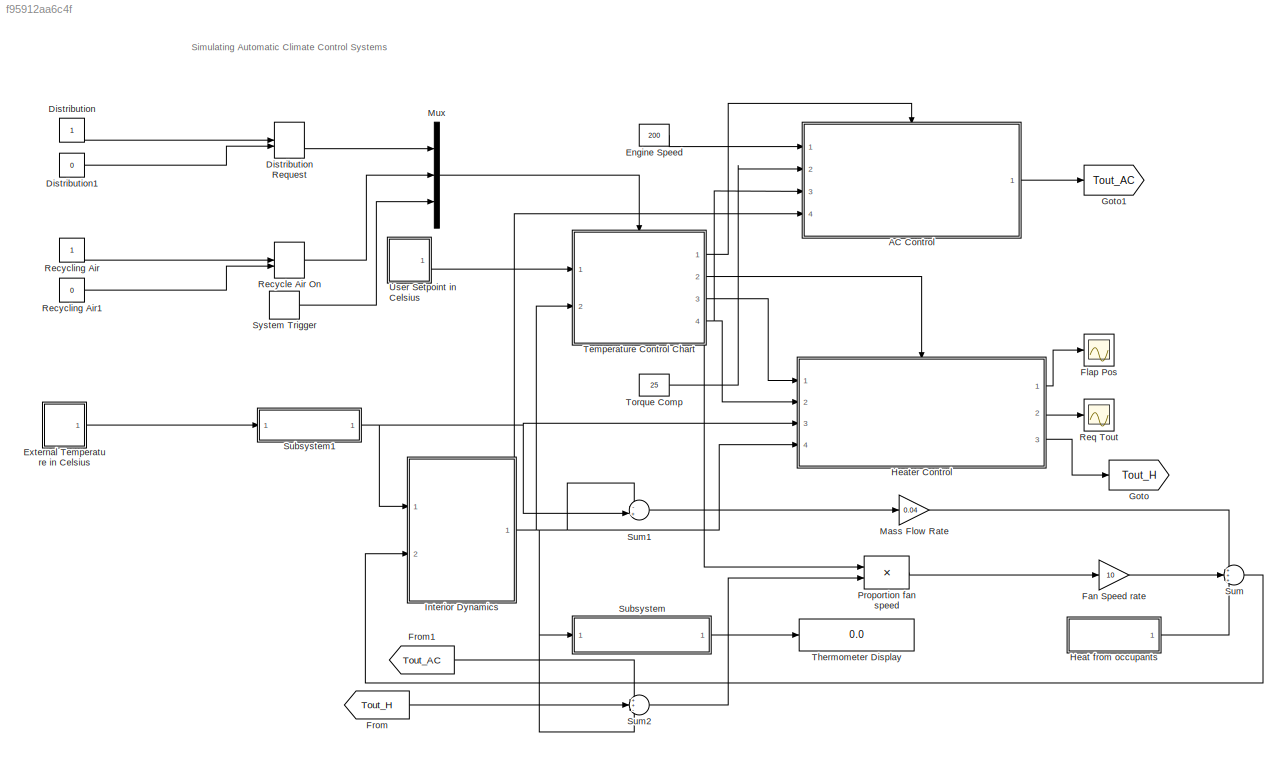
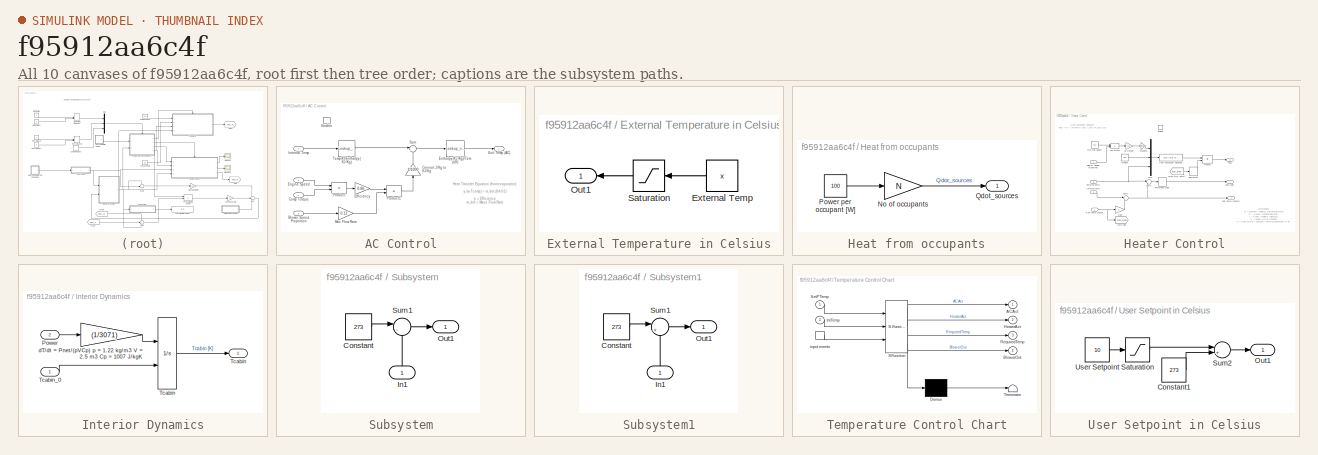
[diagram: thumbnail index - all 10 canvases of the model, root first then tree order]
MODEL slx_f95912aa6c4f
KIND model
CONFIG AbsTol = auto
CONFIG EnableMultiTasking = on
CONFIG FixedStep = auto
CONFIG MaxStep = auto
CONFIG MinStep = auto
CONFIG RelTol = 1e-3
CONFIG SampleTimeConstraint = Unconstrained
CONFIG SolverName = ode45
CONFIG StartTime = 0.0
CONFIG StopTime = 1000.0
BLOCK [SubSystem] AC Control
  Ports = [4, 1, 1]
  RequestExecContextInheritance = off
  TreatAsAtomicUnit = on
BLOCK [Inport] AC Control/Blower Speed Proportion
  Port = 3
BLOCK [Inport] AC Control/Comp Torque
  Port = 2
BLOCK [Gain] AC Control/Convert J//Kg to KJ//Kg
  Gain = 1/1000
  NameLocation = left
BLOCK [Gain] AC Control/Efficiency
  Gain = 0.86
  OutDataTypeStr = Inherit: Same as input
  ParamDataTypeStr = Inherit: Same as input
  SaturateOnIntegerOverflow = on
BLOCK [EnablePort] AC Control/Enable
  Ports = []
  PropagateVarSize = During execution
  StatesWhenEnabling = reset
  ZeroCross = off
BLOCK [Inport] AC Control/Engine Speed
BLOCK [Lookup_n-D] AC Control/Enthalpy(KJ//Kg)//Temp(K)
  BreakpointsForDimension1 = [ 219.97 230.02 240.02 250.05 260.09 270.11 280.13 285.14 290.16 295.17 300.19 305.22 310.24 315.27 320.29]
  InputPortMap = u0
  NumberOfTableDimensions = 1
  Ports = [1, 1]
  SaturateOnIntegerOverflow = on
  Table = [220 230 240 250 260 270 280 285 290 295 300 305 310 315 320]
BLOCK [Outport] AC Control/Exit Temp (AC)
  InitialOutput = 0
  OutputWhenDisabled = reset
  VectorParamsAs1DForOutWhenUnconnected = off
BLOCK [Inport] AC Control/Internal Temp
  Port = 4
BLOCK [Gain] AC Control/Max Flow Rate
  Gain = 0.12
  OutDataTypeStr = Inherit: Same as input
  ParamDataTypeStr = Inherit: Same as input
  SaturateOnIntegerOverflow = on
BLOCK [Product] AC Control/Product
  InputSameDT = on
  OutDataTypeStr = Inherit: Same as first input
  Ports = [2, 1]
  SaturateOnIntegerOverflow = on
BLOCK [Product] AC Control/Product1
  InputSameDT = on
  Inputs = */
  OutDataTypeStr = Inherit: Same as first input
  Ports = [2, 1]
  SaturateOnIntegerOverflow = on
BLOCK [Sum] AC Control/Sum
  InputSameDT = on
  Inputs = |+-
  OutDataTypeStr = Inherit: Same as first input
  Ports = [2, 1]
  SaturateOnIntegerOverflow = on
BLOCK [Lookup_n-D] AC Control/Temp(K)//Enthalpy(KJ//Kg)
  BreakpointsForDimension1 = [220 230 240 250 260 270 280 285 290 295 300 305 310 315 320]
  InputPortMap = u0
  NumberOfTableDimensions = 1
  Ports = [1, 1]
  SaturateOnIntegerOverflow = on
  Table = [219.97 230.02 240.02 250.05 260.09 270.11 280.13 285.14 290.16 295.17 300.19 305.22 310.24 315.27 320.29]
BLOCK [Constant] Distribution 
  NameLocation = top
BLOCK [ManualSwitch] Distribution Request
  CurrentSetting = 0
  NameLocation = top
BLOCK [Constant] Distribution1 
  Value = 0
BLOCK [Constant] Engine Speed
  Value = 200
BLOCK [SubSystem] External Temperature in Celsius
  Ports = [0, 1]
  RequestExecContextInheritance = off
BLOCK [Constant] External Temperature in Celsius/External Temp
  Value = x
BLOCK [Outport] External Temperature in Celsius/Out1
  VectorParamsAs1DForOutWhenUnconnected = off
BLOCK [Saturate] External Temperature in Celsius/Saturation
  LowerLimit = -99
  UpperLimit = 100
BLOCK [Gain] Fan Speed rate
  Gain = 10
  OutDataTypeStr = Inherit: Same as input
  ParamDataTypeStr = Inherit: Same as input
  SaturateOnIntegerOverflow = on
BLOCK [Scope] Flap Pos
  Floating = off
  NumInputPorts = 1
  Ports = [1]
  ScopeSpecificationString = Simulink.scopes.TimeScopeBlockCfg('CurrentConfiguration', extmgr.ConfigurationSet(extmgr.Configuration('Core','General UI',true),extmgr.Configuration('Core','Source UI',true),extmgr.Configuration('Sources','WiredSimulink',true,'DataLoggingSaveFormat','StructureWithTime','DataLoggingLimitDataPoints',true,'DataLoggingDecimation','1'),extmgr.Configuration('Visuals','Time Domain',true,'SerializedDispl...<+1713ch>
BLOCK [From] From
  CloseFcn = tagdialog Close
  GotoTag = Tout_H
BLOCK [From] From1
  CloseFcn = tagdialog Close
  GotoTag = Tout_AC
BLOCK [Goto] Goto
  GotoTag = Tout_H
BLOCK [Goto] Goto1
  GotoTag = Tout_AC
BLOCK [SubSystem] Heat from occupants
  AttributesFormatString = No. of occupants: %<N>
  Ports = [0, 1]
  RequestExecContextInheritance = off
BLOCK [Gain] Heat from occupants/No of occupants
  Gain = N
  OutDataTypeStr = Inherit: Same as input
  ParamDataTypeStr = Inherit: Same as input
  SaturateOnIntegerOverflow = on
BLOCK [Constant] Heat from occupants/Power per occupant [W]
  Value = 100
BLOCK [Outport] Heat from occupants/Qdot_sources
  VectorParamsAs1DForOutWhenUnconnected = off
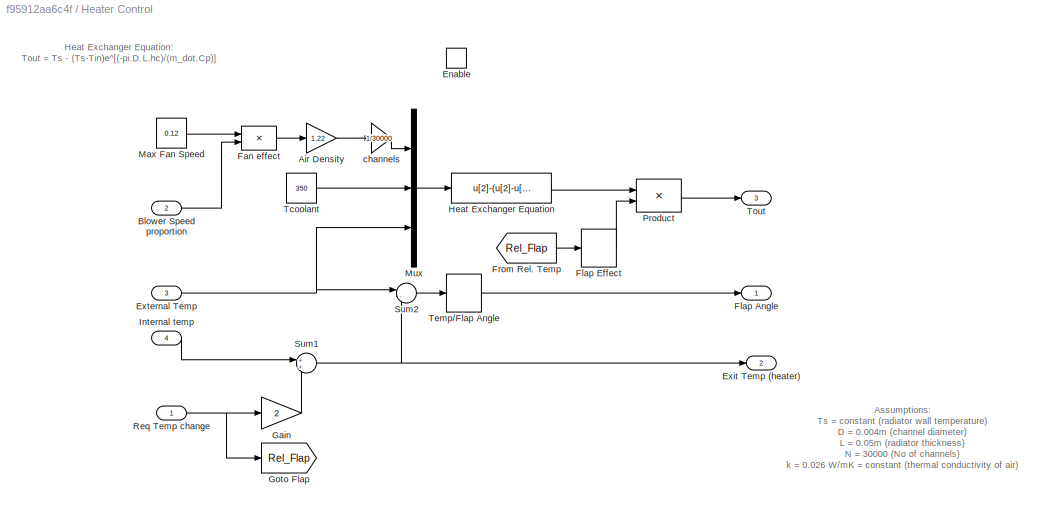
BLOCK [SubSystem] Heater Control
  Ports = [4, 3, 1]
  RequestExecContextInheritance = off
  TreatAsAtomicUnit = on
BLOCK [Gain] Heater Control/Air Density
  Gain = 1.22
  OutDataTypeStr = Inherit: Same as input
  ParamDataTypeStr = Inherit: Same as input
  SaturateOnIntegerOverflow = on
BLOCK [Inport] Heater Control/Blower Speed proportion
  Port = 2
BLOCK [EnablePort] Heater Control/Enable
  Ports = []
  PropagateVarSize = During execution
  StatesWhenEnabling = reset
  ZeroCross = off
BLOCK [Outport] Heater Control/Exit Temp (heater)
  InitialOutput = 0
  OutputWhenDisabled = reset
  Port = 2
  VectorParamsAs1DForOutWhenUnconnected = off
BLOCK [Inport] Heater Control/External Temp
  Port = 3
BLOCK [Product] Heater Control/Fan effect
  InputSameDT = on
  OutDataTypeStr = Inherit: Same as first input
  Ports = [2, 1]
  SaturateOnIntegerOverflow = on
BLOCK [Outport] Heater Control/Flap Angle
  InitialOutput = 0
  OutputWhenDisabled = reset
  VectorParamsAs1DForOutWhenUnconnected = off
BLOCK [Lookup_n-D] Heater Control/Flap Effect
  BreakpointsForDimension1 = [0 3 5 10 50  90 100 200 ]
  InputPortMap = u0
  NumberOfTableDimensions = 1
  Ports = [1, 1]
  SaturateOnIntegerOverflow = on
  Table = [0 300 100  10 10  10 3 1]
BLOCK [From] Heater Control/From Rel. Temp
  CloseFcn = tagdialog Close
  GotoTag = Rel_Flap
BLOCK [Gain] Heater Control/Gain
  Gain = 2
  OutDataTypeStr = Inherit: Same as input
  ParamDataTypeStr = Inherit: Same as input
  SaturateOnIntegerOverflow = on
BLOCK [Goto] Heater Control/Goto Flap
  GotoTag = Rel_Flap
BLOCK [Fcn] Heater Control/Heat Exchanger Equation
  Expr = u[2]-(u[2]-u[3])*exp(-(pi*0.004*0.05*23.8)/(u[1]*1007))
BLOCK [Inport] Heater Control/Internal temp
  Port = 4
BLOCK [Constant] Heater Control/Max Fan Speed
  Value = 0.12
BLOCK [Mux] Heater Control/Mux
  DisplayOption = bar
  Inputs = 3
  Ports = [3, 1]
BLOCK [Product] Heater Control/Product
  InputSameDT = on
  OutDataTypeStr = Inherit: Same as first input
  Ports = [2, 1]
  SaturateOnIntegerOverflow = on
BLOCK [Inport] Heater Control/Req Temp change
BLOCK [Sum] Heater Control/Sum1
  InputSameDT = on
  OutDataTypeStr = Inherit: Same as first input
  Ports = [2, 1]
  SaturateOnIntegerOverflow = on
BLOCK [Sum] Heater Control/Sum2
  InputSameDT = on
  Inputs = |-+
  NameLocation = top
  OutDataTypeStr = Inherit: Same as first input
  Ports = [2, 1]
  SaturateOnIntegerOverflow = on
BLOCK [Constant] Heater Control/Tcoolant 
  Value = 350
BLOCK [Lookup_n-D] Heater Control/Temp//Flap Angle
  BreakpointsForDimension1 = [0 10 20 30 40 50 60 75 100 200]
  InputPortMap = u0
  NumberOfTableDimensions = 1
  Ports = [1, 1]
  SaturateOnIntegerOverflow = on
  Table = [0 20 30 45 60 75 90 90 90 90]
BLOCK [Outport] Heater Control/Tout
  InitialOutput = 0
  OutputWhenDisabled = reset
  Port = 3
  VectorParamsAs1DForOutWhenUnconnected = off
BLOCK [Gain] Heater Control/channels
  Gain = 1/30000
  OutDataTypeStr = Inherit: Same as input
  ParamDataTypeStr = Inherit: Same as input
  SaturateOnIntegerOverflow = on
BLOCK [SubSystem] Interior Dynamics
  Ports = [2, 1]
  RequestExecContextInheritance = off
BLOCK [Inport] Interior Dynamics/Power
  Port = 2
BLOCK [Integrator] Interior Dynamics/Tcabin
  InitialCondition = 291
  InitialConditionSource = external
  Ports = [2, 1]
  ZeroCross = off
BLOCK [Outport] Interior Dynamics/Tcabin 
  VectorParamsAs1DForOutWhenUnconnected = off
BLOCK [Inport] Interior Dynamics/Tcabin_0
BLOCK [Gain] Interior Dynamics/dT//dt = Pnet//(pVCp) p = 1.22 kg//m3 V = 2.5 m3 Cp = 1007 J//kgK
  Gain = (1/3071)
  NameLocation = top
  OutDataTypeStr = Inherit: Same as input
  ParamDataTypeStr = Inherit: Same as input
  SaturateOnIntegerOverflow = on
BLOCK [Gain] Mass Flow Rate
  Gain = 0.04
  OutDataTypeStr = Inherit: Same as input
  ParamDataTypeStr = Inherit: Same as input
  SaturateOnIntegerOverflow = on
BLOCK [Mux] Mux
  DisplayOption = bar
  Inputs = 3
  Ports = [3, 1]
BLOCK [Product] Proportion fan speed
  InputSameDT = on
  OutDataTypeStr = Inherit: Same as first input
  Ports = [2, 1]
  SaturateOnIntegerOverflow = on
BLOCK [ManualSwitch] Recycle Air On
  CurrentSetting = 0
  NameLocation = top
BLOCK [Constant] Recycling Air
  NameLocation = top
BLOCK [Constant] Recycling Air1
  Value = 0
BLOCK [Scope] Req Tout
  Floating = off
  NumInputPorts = 1
  Ports = [1]
  ScopeSpecificationString = Simulink.scopes.TimeScopeBlockCfg('CurrentConfiguration', extmgr.ConfigurationSet(extmgr.Configuration('Core','General UI',true),extmgr.Configuration('Core','Source UI',true),extmgr.Configuration('Sources','WiredSimulink',true,'DataLoggingVariableName','ScopeData1','DataLoggingSaveFormat','StructureWithTime','DataLoggingLimitDataPoints',true,'DataLoggingDecimation','1'),extmgr.Configuration('Visua...<+1752ch>
BLOCK [SubSystem] Subsystem
  NameLocation = top
  Ports = [1, 1]
  RequestExecContextInheritance = off
BLOCK [Constant] Subsystem/Constant
  Value = 273
BLOCK [Inport] Subsystem/In1
  NameLocation = right
BLOCK [Outport] Subsystem/Out1
  VectorParamsAs1DForOutWhenUnconnected = off
BLOCK [Sum] Subsystem/Sum1
  InputSameDT = on
  Inputs = |-+
  OutDataTypeStr = Inherit: Same as first input
  Ports = [2, 1]
  SaturateOnIntegerOverflow = on
BLOCK [SubSystem] Subsystem1
  NameLocation = top
  Ports = [1, 1]
  RequestExecContextInheritance = off
BLOCK [Constant] Subsystem1/Constant
  Value = 273
BLOCK [Inport] Subsystem1/In1
  NameLocation = right
BLOCK [Outport] Subsystem1/Out1
  VectorParamsAs1DForOutWhenUnconnected = off
BLOCK [Sum] Subsystem1/Sum1
  InputSameDT = on
  Inputs = |++
  OutDataTypeStr = Inherit: Same as first input
  Ports = [2, 1]
  SaturateOnIntegerOverflow = on
BLOCK [Sum] Sum
  InputSameDT = on
  Inputs = +++
  OutDataTypeStr = Inherit: Same as first input
  Ports = [3, 1]
  SaturateOnIntegerOverflow = on
BLOCK [Sum] Sum1
  InputSameDT = on
  Inputs = -+|
  OutDataTypeStr = Inherit: Same as first input
  Ports = [2, 1]
  SaturateOnIntegerOverflow = on
BLOCK [Sum] Sum2
  InputSameDT = on
  Inputs = ++-
  OutDataTypeStr = Inherit: Same as first input
  Ports = [3, 1]
  SaturateOnIntegerOverflow = on
BLOCK [DiscretePulseGenerator] System Trigger
  Period = 1/60
  Ports = [0, 1]
  PulseType = Time based
  PulseWidth = 50
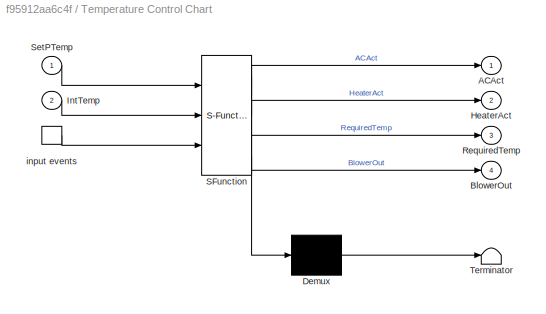
BLOCK [SubSystem] Temperature Control Chart
  ErrorFcn = Stateflow.Translate.translate
  PermitHierarchicalResolution = ExplicitOnly
  Ports = [2, 4, 0, 1]
  RequestExecContextInheritance = off
  SFBlockType = Chart
  TreatAsAtomicUnit = on
BLOCK [Outport] Temperature Control Chart/ ACAct
  VectorParamsAs1DForOutWhenUnconnected = off
BLOCK [Demux] Temperature Control Chart/ Demux 
  Outputs = 1
  Ports = [1, 1]
BLOCK [Outport] Temperature Control Chart/ HeaterAct
  Port = 2
  VectorParamsAs1DForOutWhenUnconnected = off
BLOCK [S-Function] Temperature Control Chart/ SFunction 
  EnableBusSupport = on
  FunctionName = sf_sfun
  PortCounts = [3 5]
  Ports = [3, 5]
  SFcnIsStateOwnerBlock = off
  SFunctionDeploymentMode = off
  Tag = Stateflow S-Function 1
BLOCK [Terminator] Temperature Control Chart/ Terminator 
BLOCK [TriggerPort] Temperature Control Chart/ input events 
  Ports = [0, 1]
  ShowOutputPort = on
  TriggerType = either
  VariantControl = (inherit)
  ZeroCross = off
BLOCK [Outport] Temperature Control Chart/BlowerOut
  Port = 4
  VectorParamsAs1DForOutWhenUnconnected = off
BLOCK [Inport] Temperature Control Chart/IntTemp
  Port = 2
BLOCK [Outport] Temperature Control Chart/RequiredTemp
  Port = 3
  VectorParamsAs1DForOutWhenUnconnected = off
BLOCK [Inport] Temperature Control Chart/SetPTemp
BLOCK [Display] Thermometer Display
  Decimation = 1
  Ports = [1]
BLOCK [Constant] Torque Comp
  Value = 25
BLOCK [SubSystem] User Setpoint in Celsius
  Ports = [0, 1]
  RequestExecContextInheritance = off
BLOCK [Constant] User Setpoint in Celsius/Constant1
  Value = 273
BLOCK [Outport] User Setpoint in Celsius/Out1
  VectorParamsAs1DForOutWhenUnconnected = off
BLOCK [Saturate] User Setpoint in Celsius/Saturation
  LowerLimit = -99
  UpperLimit = 100
BLOCK [Sum] User Setpoint in Celsius/Sum2
  InputSameDT = on
  Inputs = |++
  OutDataTypeStr = Inherit: Same as first input
  Ports = [2, 1]
  SaturateOnIntegerOverflow = on
BLOCK [Constant] User Setpoint in Celsius/User Setpoint
  Value = 10
ANNOTATION (root): Simulating Automatic Climate Control Systems
ANNOTATION AC Control: Heat Transfer Equation (from evaporator): y.(w.Tcomp) = m_dot.(h4-h1) y = Efficiency m_dot = Mass Flow Rate w = Speed of the Engine Tcomp = Compressor Torque h4, h1 = Enthalpy
ANNOTATION Heater Control: Assumptions: Ts = constant (radiator wall temperature) D = 0.004m (channel diameter) L = 0.05m (radiator thickness) N = 30000 (No of channels) k = 0.026 W/mK = constant (thermal conductivity of air) Cp = 1007 J/kgK = constant (specific heat of air) Laminar flow (hc = 3.66(k/D) = 23.8 W/m2K )
ANNOTATION Heater Control: Heat Exchanger Equation: Tout = Ts - (Ts-Tin)e^[(-pi.D.L.hc)/(m_dot.Cp)]
LINE AC Control/Blower Speed Proportion:1 -> AC Control/Max Flow Rate:1
LINE AC Control/Comp Torque:1 -> AC Control/Product:2
LINE AC Control/Convert J//Kg to KJ//Kg:1 -> AC Control/Sum:2
LINE AC Control/Efficiency:1 -> AC Control/Product1:1
LINE AC Control/Engine Speed:1 -> AC Control/Product:1
LINE AC Control/Enthalpy(KJ//Kg)//Temp(K):1 -> AC Control/Exit Temp (AC):1
LINE AC Control/Internal Temp:1 -> AC Control/Temp(K)//Enthalpy(KJ//Kg):1
LINE AC Control/Max Flow Rate:1 -> AC Control/Product1:2
LINE AC Control/Product1:1 -> AC Control/Convert J//Kg to KJ//Kg:1
LINE AC Control/Product:1 -> AC Control/Efficiency:1
LINE AC Control/Sum:1 -> AC Control/Enthalpy(KJ//Kg)//Temp(K):1
LINE AC Control/Temp(K)//Enthalpy(KJ//Kg):1 -> AC Control/Sum:1
LINE AC Control:1 -> Goto1:1
LINE Distribution :1 -> Distribution Request:1
LINE Distribution Request:1 -> Mux:1
LINE Distribution1 :1 -> Distribution Request:2
LINE Engine Speed:1 -> AC Control:1
LINE External Temperature in Celsius/External Temp:1 -> External Temperature in Celsius/Saturation:1
LINE External Temperature in Celsius/Saturation:1 -> External Temperature in Celsius/Out1:1
LINE External Temperature in Celsius:1 -> Subsystem1:1
LINE Fan Speed rate:1 -> Sum:2
LINE From1:1 -> Sum2:1
LINE From:1 -> Sum2:2
LINE Heat from occupants/No of occupants:1 -> Heat from occupants/Qdot_sources:1
LINE Heat from occupants/Power per occupant [W]:1 -> Heat from occupants/No of occupants:1
LINE Heat from occupants:1 -> Sum:3
LINE Heater Control/Air Density:1 -> Heater Control/channels:1
LINE Heater Control/Blower Speed proportion:1 -> Heater Control/Fan effect:2
NET Heater Control/External Temp:1 -> Heater Control/Mux:3, Heater Control/Sum2:1
LINE Heater Control/Fan effect:1 -> Heater Control/Air Density:1
LINE Heater Control/Flap Effect:1 -> Heater Control/Product:2
LINE Heater Control/From Rel. Temp:1 -> Heater Control/Flap Effect:1
LINE Heater Control/Gain:1 -> Heater Control/Sum1:2
LINE Heater Control/Heat Exchanger Equation:1 -> Heater Control/Product:1
LINE Heater Control/Internal temp:1 -> Heater Control/Sum1:1
LINE Heater Control/Max Fan Speed:1 -> Heater Control/Fan effect:1
LINE Heater Control/Mux:1 -> Heater Control/Heat Exchanger Equation:1
LINE Heater Control/Product:1 -> Heater Control/Tout:1
NET Heater Control/Req Temp change:1 -> Heater Control/Gain:1, Heater Control/Goto Flap:1
NET Heater Control/Sum1:1 -> Heater Control/Exit Temp (heater):1, Heater Control/Sum2:2
LINE Heater Control/Sum2:1 -> Heater Control/Temp//Flap Angle:1
LINE Heater Control/Tcoolant :1 -> Heater Control/Mux:2
LINE Heater Control/Temp//Flap Angle:1 -> Heater Control/Flap Angle:1
LINE Heater Control/channels:1 -> Heater Control/Mux:1
LINE Heater Control:1 -> Flap Pos:1
LINE Heater Control:2 -> Req Tout:1
LINE Heater Control:3 -> Goto:1
LINE Interior Dynamics/Power:1 -> Interior Dynamics/dT//dt = Pnet//(pVCp) p = 1.22 kg//m3 V = 2.5 m3 Cp = 1007 J//kgK:1
LINE Interior Dynamics/Tcabin:1 -> Interior Dynamics/Tcabin :1
LINE Interior Dynamics/Tcabin_0:1 -> Interior Dynamics/Tcabin:2
LINE Interior Dynamics/dT//dt = Pnet//(pVCp) p = 1.22 kg//m3 V = 2.5 m3 Cp = 1007 J//kgK:1 -> Interior Dynamics/Tcabin:1
NET Interior Dynamics:1 -> AC Control:4, Heater Control:4, Subsystem:1, Sum1:1, Sum2:3, Temperature Control Chart:2
LINE Mass Flow Rate:1 -> Sum:1
LINE Mux:1 -> Temperature Control Chart:trigger
LINE Proportion fan speed:1 -> Fan Speed rate:1
LINE Recycle Air On:1 -> Mux:2
LINE Recycling Air1:1 -> Recycle Air On:2
LINE Recycling Air:1 -> Recycle Air On:1
LINE Subsystem/Constant:1 -> Subsystem/Sum1:1
LINE Subsystem/In1:1 -> Subsystem/Sum1:2
LINE Subsystem/Sum1:1 -> Subsystem/Out1:1
LINE Subsystem1/Constant:1 -> Subsystem1/Sum1:1
LINE Subsystem1/In1:1 -> Subsystem1/Sum1:2
LINE Subsystem1/Sum1:1 -> Subsystem1/Out1:1
NET Subsystem1:1 -> Heater Control:3, Interior Dynamics:1, Sum1:2
LINE Subsystem:1 -> Thermometer Display:1
LINE Sum1:1 -> Mass Flow Rate:1
LINE Sum2:1 -> Proportion fan speed:2
LINE Sum:1 -> Interior Dynamics:2
LINE System Trigger:1 -> Mux:3
LINE Temperature Control Chart:1 -> AC Control:enable
LINE Temperature Control Chart:2 -> Heater Control:enable
LINE Temperature Control Chart:3 -> Heater Control:1
NET Temperature Control Chart:4 -> AC Control:3, Heater Control:2, Proportion fan speed:1
LINE Torque Comp:1 -> AC Control:2
LINE User Setpoint in Celsius/Constant1:1 -> User Setpoint in Celsius/Sum2:2
LINE User Setpoint in Celsius/Saturation:1 -> User Setpoint in Celsius/Sum2:1
LINE User Setpoint in Celsius/Sum2:1 -> User Setpoint in Celsius/Out1:1
LINE User Setpoint in Celsius/User Setpoint:1 -> User Setpoint in Celsius/Saturation:1
LINE User Setpoint in Celsius:1 -> Temperature Control Chart:1
note: NET lines group one-source signal fan-out (src -> all destinations, sorted); 1:1 wires keep LINE
CHART Temperature Control Chart states=21 transitions=26
  STATE_LABEL 'Blower\nduring:setpoint_calc();'
  STATE_LABEL 'Blower_off\nentry:BlowerOut=0.0;'
  STATE_LABEL 'Blower_on'
  STATE_LABEL 'Blower_1\nentry:BlowerOut=0.2;'
  STATE_LABEL 'Blower_2\nentry:BlowerOut=0.4;'
  STATE_LABEL 'Blower_3\nentry:BlowerOut=0.6;'
  STATE_LABEL 'Blower_4\nentry:BlowerOut=0.8;'
  STATE_LABEL 'Blower_5\nentry:BlowerOut=1.0;'
  STATE_LABEL 'E[~in(Blower_1) && in_temp_range(1.5,5)]'
  STATE_LABEL 'E[~in(Blower_2) && in_temp_range(7,10)]'
  STATE_LABEL 'E[~in(Blower_3) && in_temp_range(12,15)]'
  STATE_LABEL 'E[~in(Blower_4) && in_temp_range(17,20)]'
  STATE_LABEL 'E[~in(Blower_5) && in_temp_range(22,200)]'
  STATE_LABEL 'setpoint_calc()'
  STATE_LABEL '{RequiredTemp = SetPTemp-IntTemp;}'
  STATE_LABEL '[RequiredTemp<0.0]\n{absTempDiff = -RequiredTemp;}'
  STATE_LABEL '{absTempDiff = RequiredTemp;}'
  STATE_LABEL 'b = in_temp_range(minTemp,maxTemp)'
  STATE_LABEL '{b = (absTempDiff>minTemp) &&  ...\n        (absTempDiff<maxTemp);}'
  STATE_LABEL 'E[in_temp_range(.5,203)]'
  STATE_LABEL 'E[absTempDiff>203 || absTempDiff<=0.5]'
  STATE_LABEL 'Blower_off\nentry:BlowerOut=0.0;'
  STATE_LABEL 'Blower_on'
  STATE_LABEL 'Blower_1\nentry:BlowerOut=0.2;'
  STATE_LABEL 'Blower_2\nentry:BlowerOut=0.4;'
  STATE_LABEL 'Blower_3\nentry:BlowerOut=0.6;'
  STATE_LABEL 'Blower_4\nentry:BlowerOut=0.8;'
  STATE_LABEL 'Blower_5\nentry:BlowerOut=1.0;'
  STATE_LABEL 'E[~in(Blower_1) && in_temp_range(1.5,5)]'
  STATE_LABEL 'E[~in(Blower_2) && in_temp_range(7,10)]'
  STATE_LABEL 'E[~in(Blower_3) && in_temp_range(12,15)]'
  STATE_LABEL 'E[~in(Blower_4) && in_temp_range(17,20)]'
  STATE_LABEL 'E[~in(Blower_5) && in_temp_range(22,200)]'
  STATE_LABEL 'Blower_1\nentry:BlowerOut=0.2;'
  STATE_LABEL 'Blower_2\nentry:BlowerOut=0.4;'
  STATE_LABEL 'Blower_3\nentry:BlowerOut=0.6;'
  STATE_LABEL 'Blower_4\nentry:BlowerOut=0.8;'
  STATE_LABEL 'Blower_5\nentry:BlowerOut=1.0;'
  STATE_LABEL 'setpoint_calc()'
  STATE_LABEL '{RequiredTemp = SetPTemp-IntTemp;}'
CHART  states=0 transitions=0
